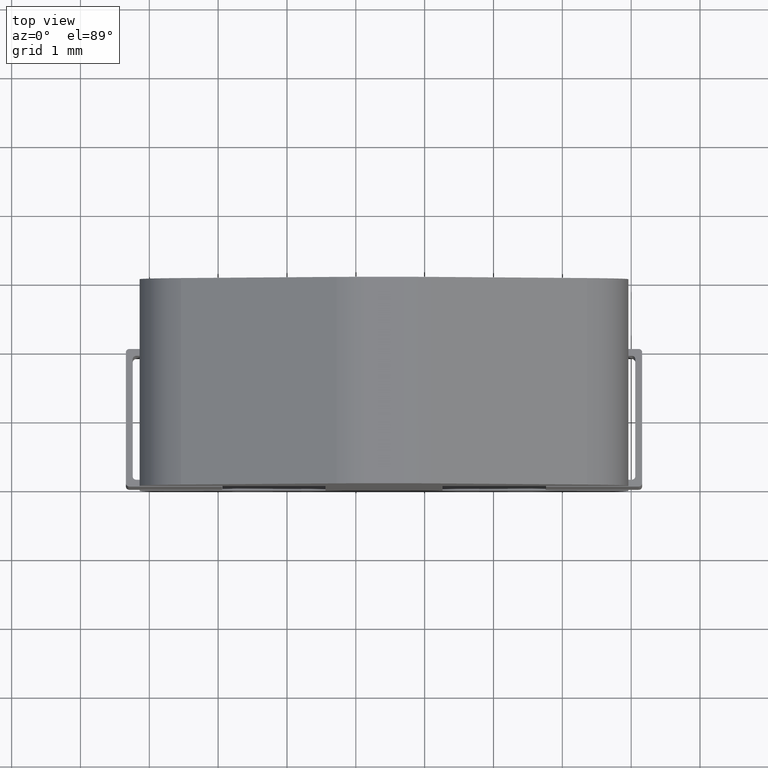
[diagram: clean part render]
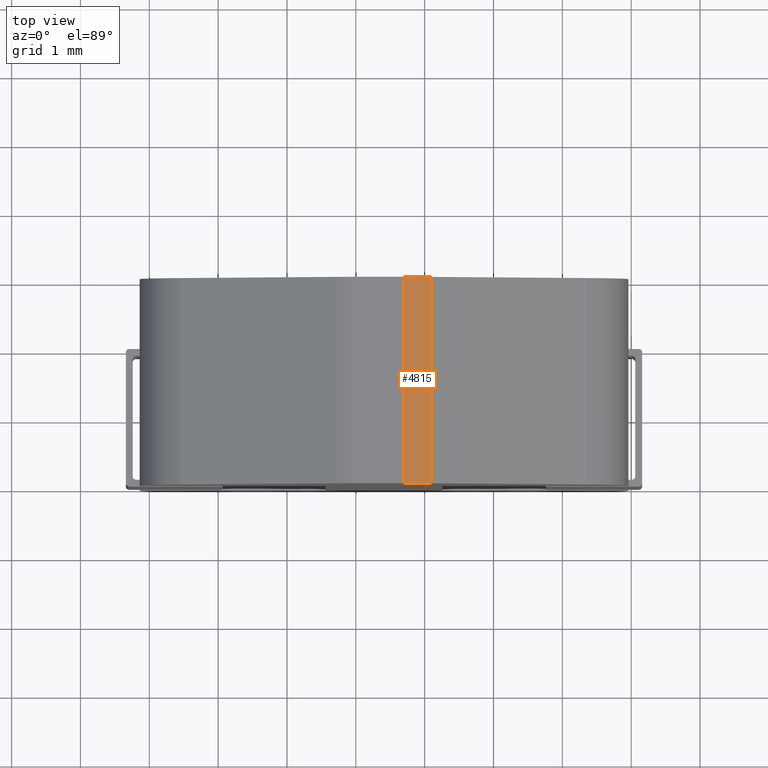
[diagram: same view with one face highlighted and labeled with its STEP entity id]
A machine part, top view. The second image highlights one B-rep face of the part: STEP entity #4815.
In plain terms, the highlighted cylindrical surface (partial cylindrical patch) has radius 1 mm, axis along (0, 1, 0).
Its self-contained STEP definition (entity closure, byte-faithful):
#76 = CIRCLE ( 'NONE', #534, 1.000000000000000000 ) ;
#178 = CYLINDRICAL_SURFACE ( 'NONE', #1244, 1.000000000000000000 ) ;
#336 = DIRECTION ( 'NONE',  ( 0.0000000000000000000, -1.000000000000000000, 0.0000000000000000000 ) ) ;
#351 = ORIENTED_EDGE ( 'NONE', *, *, #4377, .F. ) ;
#441 = EDGE_CURVE ( 'NONE', #2720, #625, #2303, .T. ) ;
#534 = AXIS2_PLACEMENT_3D ( 'NONE', #2298, #1895, #1189 ) ;
#569 = CARTESIAN_POINT ( 'NONE',  ( 3.100313896734117100, 0.0000000000000000000, 0.2398901135246380700 ) ) ;
#621 = EDGE_LOOP ( 'NONE', ( #351, #3435, #4459, #2915 ) ) ;
#625 = VERTEX_POINT ( 'NONE', #1219 ) ;
#671 = DIRECTION ( 'NONE',  ( 0.0000000000000000000, 0.0000000000000000000, -1.000000000000000000 ) ) ;
#762 = EDGE_CURVE ( 'NONE', #4414, #2720, #3521, .T. ) ;
#967 = CARTESIAN_POINT ( 'NONE',  ( 3.100313896734117100, 3.000000000000000000, 0.2398901135246380700 ) ) ;
#1189 = DIRECTION ( 'NONE',  ( 0.0000000000000000000, 0.0000000000000000000, -1.000000000000000000 ) ) ;
#1208 = CARTESIAN_POINT ( 'NONE',  ( 2.701389800261913000, 0.0000000000000000000, 0.3229061631450061400 ) ) ;
#1219 = CARTESIAN_POINT ( 'NONE',  ( 2.701389800261913000, 3.000000000000000000, 0.3229061631450061400 ) ) ;
#1244 = AXIS2_PLACEMENT_3D ( 'NONE', #2021, #4622, #3159 ) ;
#1895 = DIRECTION ( 'NONE',  ( -0.0000000000000000000, 1.000000000000000000, -0.0000000000000000000 ) ) ;
#2021 = CARTESIAN_POINT ( 'NONE',  ( 2.701389800261913000, 3.000000000000000000, -0.6770938368549939100 ) ) ;
#2071 = DIRECTION ( 'NONE',  ( 0.0000000000000000000, -1.000000000000000000, 0.0000000000000000000 ) ) ;
#2206 = CARTESIAN_POINT ( 'NONE',  ( 2.701389800261913000, 0.0000000000000000000, -0.6770938368549939100 ) ) ;
#2297 = CARTESIAN_POINT ( 'NONE',  ( 2.701389800261913000, 3.000000000000000000, 0.3229061631450061400 ) ) ;
#2298 = CARTESIAN_POINT ( 'NONE',  ( 2.701389800261913000, 3.000000000000000000, -0.6770938368549939100 ) ) ;
#2303 = LINE ( 'NONE', #2297, #4065 ) ;
#2434 = VERTEX_POINT ( 'NONE', #967 ) ;
#2584 = AXIS2_PLACEMENT_3D ( 'NONE', #2206, #336, #671 ) ;
#2701 = CARTESIAN_POINT ( 'NONE',  ( 3.100313896734117100, 0.0000000000000000000, 0.2398901135246380700 ) ) ;
#2720 = VERTEX_POINT ( 'NONE', #1208 ) ;
#2890 = EDGE_CURVE ( 'NONE', #2434, #4414, #4113, .T. ) ;
#2915 = ORIENTED_EDGE ( 'NONE', *, *, #2890, .F. ) ;
#3159 = DIRECTION ( 'NONE',  ( 0.0000000000000000000, 0.0000000000000000000, 1.000000000000000000 ) ) ;
#3435 = ORIENTED_EDGE ( 'NONE', *, *, #441, .F. ) ;
#3521 = CIRCLE ( 'NONE', #2584, 1.000000000000000000 ) ;
#3627 = FACE_OUTER_BOUND ( 'NONE', #621, .T. ) ;
#3819 = DIRECTION ( 'NONE',  ( -0.0000000000000000000, 1.000000000000000000, -0.0000000000000000000 ) ) ;
#4065 = VECTOR ( 'NONE', #3819, 1000.000000000000000 ) ;
#4113 = LINE ( 'NONE', #569, #4337 ) ;
#4337 = VECTOR ( 'NONE', #2071, 1000.000000000000000 ) ;
#4377 = EDGE_CURVE ( 'NONE', #625, #2434, #76, .T. ) ;
#4414 = VERTEX_POINT ( 'NONE', #2701 ) ;
#4459 = ORIENTED_EDGE ( 'NONE', *, *, #762, .F. ) ;
#4622 = DIRECTION ( 'NONE',  ( 0.0000000000000000000, 1.000000000000000000, 0.0000000000000000000 ) ) ;
#4815 = ADVANCED_FACE ( 'NONE', ( #3627 ), #178, .T. ) ;